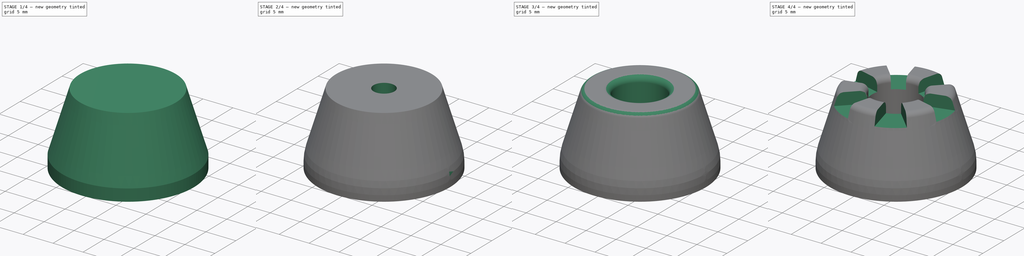
[diagram: build sequence overview — one tinted view per stage of 4, left to right]
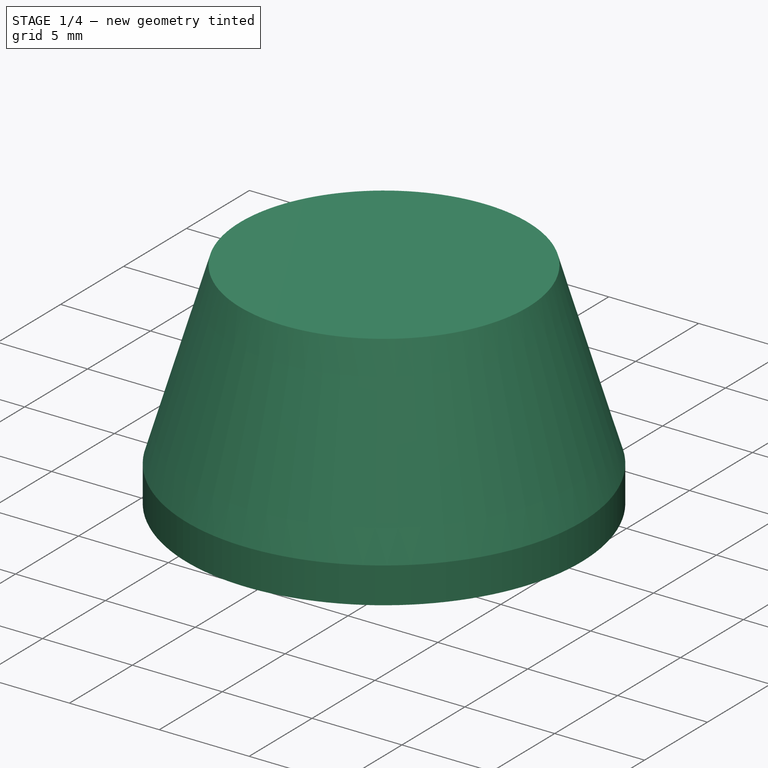
[diagram: stage 1 of 4 — iso view after this stage's code; geometry added in this stage tinted green]
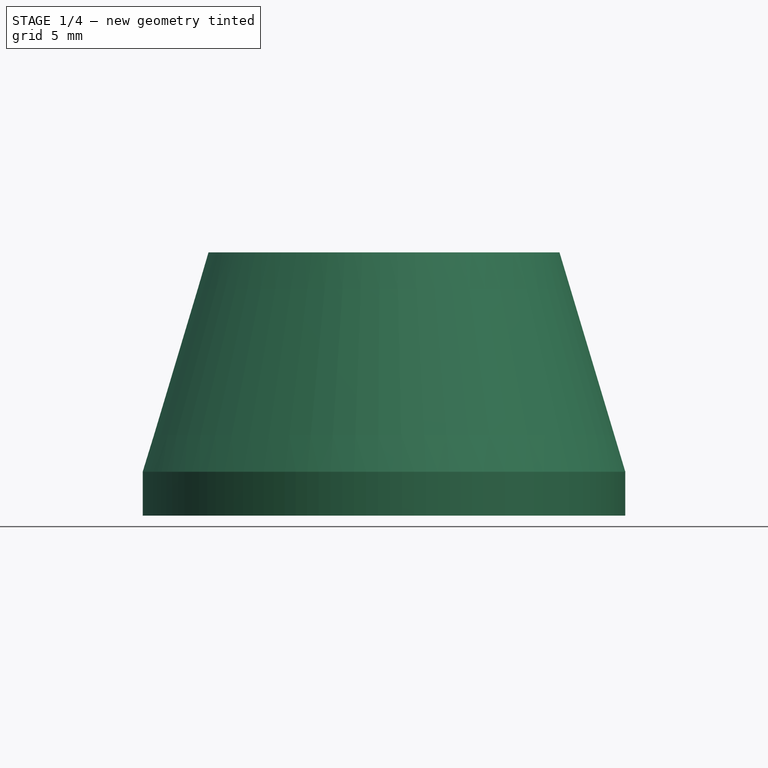
[diagram: stage 1 of 4 — front view after this stage's code; geometry added in this stage tinted green]
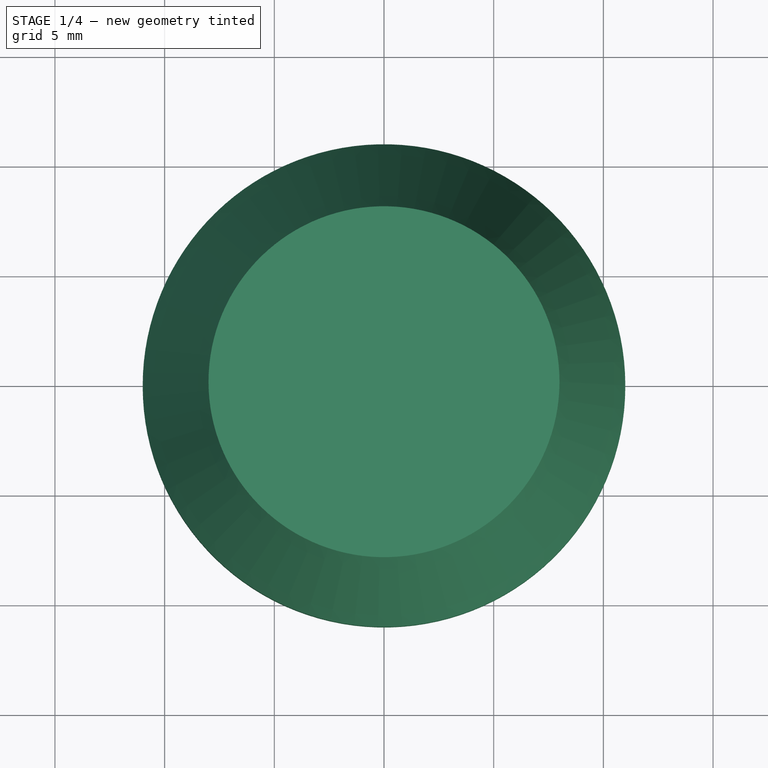
[diagram: stage 1 of 4 — top view after this stage's code; geometry added in this stage tinted green]
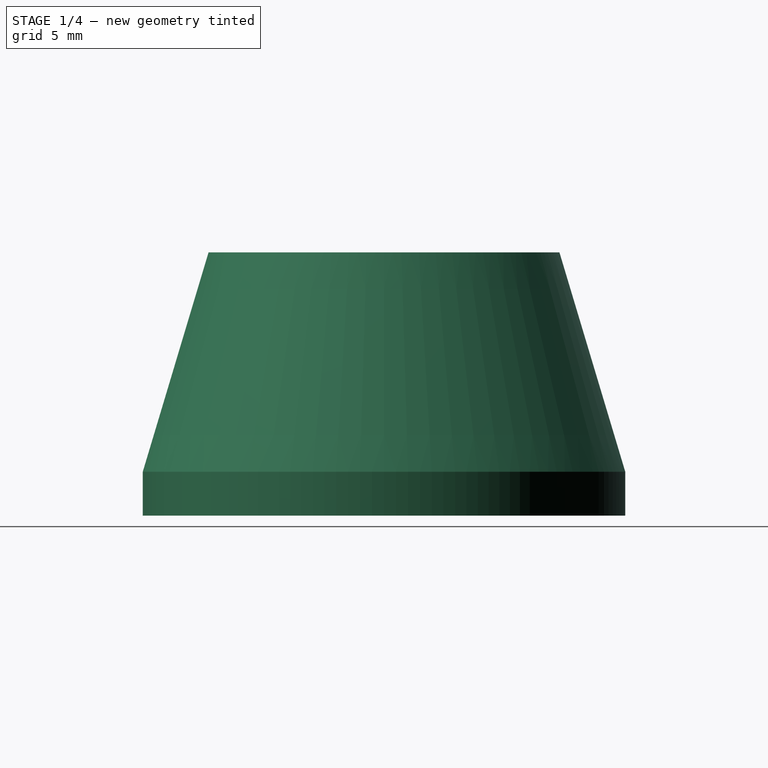
[diagram: stage 1 of 4 — right view after this stage's code; geometry added in this stage tinted green]
FCSTD DOCUMENT  (FreeCAD 0.19R22756 (Git))
Label: Rancilio-Silivia-foot
License: All rights reserved
LicenseURL: http://en.wikipedia.org/wiki/All_rights_reserved
objects: Sketcher::SketchObject×6, PartDesign::Fillet×3, PartDesign::Pocket×3, PartDesign::Pad×1, PartDesign::Plane×1, PartDesign::AdditiveLoft×1, PartDesign::PolarPattern×1, PartDesign::Body×1
note: 25 computed .brp shape members not serialized (recipe doc carries the construction recipe); baked Part::Feature solids carry a one-line shape summary decoded from their .brp

FEATURE [Sketcher::SketchObject] Sketch
  MapMode = 5
  Support = -> [XY_Plane]
  sketch-geometry (1):
    g0: Circle CenterX=0 CenterY=0 CenterZ=0 NormalX=0 NormalY=0 NormalZ=1 AngleXU=0 Radius=11
  constraints (2):
    c: Coincident(g0,g-1)
    c: Diameter(g0) = 22
FEATURE [PartDesign::Pad] Pad
  Direction = (1,1,1)
  Length = 2
  Length2 = 100
  Profile = -> Sketch
  Type = 0
FEATURE [Sketcher::SketchObject] Sketch001
  ExternalGeometry = -> [Pad]
  MapMode = 5
  Placement = pos=(0,0,2) rot=(0,0,1;0rad)
  Support = -> [Pad]
  sketch-geometry (1):
    g0: Circle CenterX=0 CenterY=0 CenterZ=0 NormalX=0 NormalY=0 NormalZ=1 AngleXU=0 Radius=11
  constraints (2):
    c: Coincident(g0,g-1)
    c: Equal(g-3,g0)
FEATURE [PartDesign::Plane] DatumPlane
  AttachmentOffset = pos=(0,0,10) rot=(0,0,1;0rad)
  Length = 60
  MapMode = 2
  Placement = pos=(0,0,12) rot=(0,0,1;0rad)
  ResizeMode = 0
  Support = -> [Sketch001]
  Width = 60
FEATURE [Sketcher::SketchObject] Sketch002
  MapMode = 5
  Placement = pos=(0,0,12) rot=(0,0,1;0rad)
  Support = -> [DatumPlane]
  sketch-geometry (1):
    g0: Circle CenterX=0 CenterY=0 CenterZ=0 NormalX=0 NormalY=0 NormalZ=1 AngleXU=0 Radius=8
  constraints (2):
    c: Coincident(g0,g-1)
    c: Diameter(g0) = 16
FEATURE [PartDesign::AdditiveLoft] AdditiveLoft
  BaseFeature = -> Pad
  Closed = false
  Profile = -> Sketch001
  Ruled = false
  Sections = -> [Sketch002]
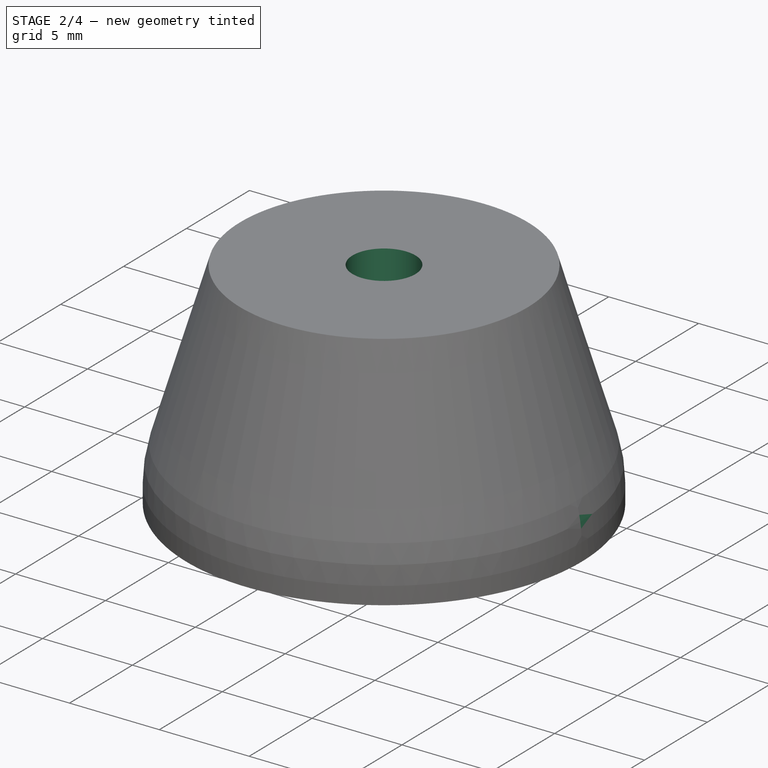
[diagram: stage 2 of 4 — iso view after this stage's code; geometry added in this stage tinted green]
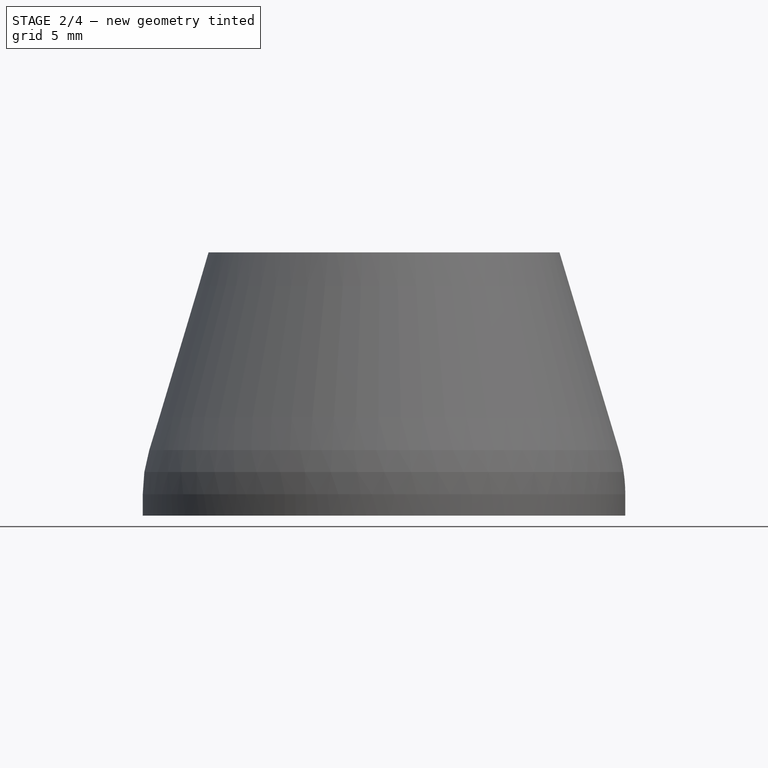
[diagram: stage 2 of 4 — front view after this stage's code; geometry added in this stage tinted green]
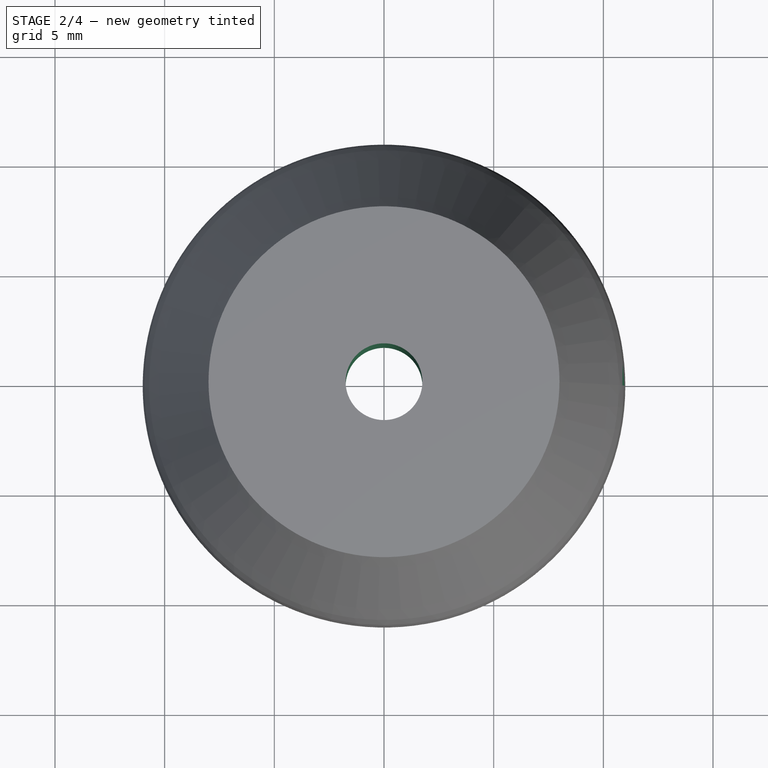
[diagram: stage 2 of 4 — top view after this stage's code; geometry added in this stage tinted green]
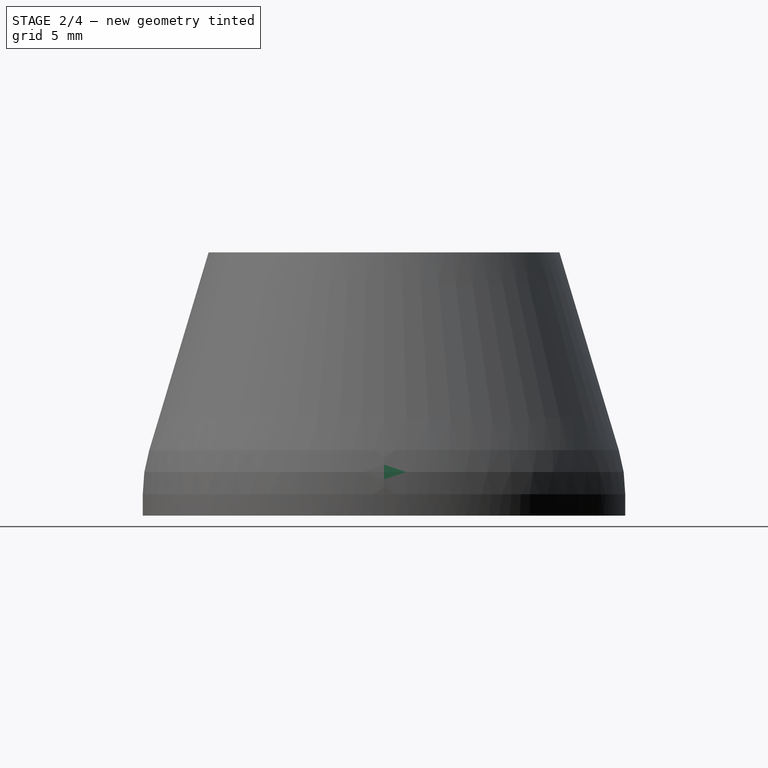
[diagram: stage 2 of 4 — right view after this stage's code; geometry added in this stage tinted green]
FEATURE [PartDesign::Fillet] Fillet
  Base = -> AdditiveLoft [Edge3]
  BaseFeature = -> AdditiveLoft
  Radius = 7
  SupportTransform = false
FEATURE [Sketcher::SketchObject] Sketch003
  MapMode = 5
  Placement = pos=(0,0,12) rot=(0,0,1;0rad)
  Support = -> [Fillet]
  sketch-geometry (1):
    g0: Circle CenterX=0 CenterY=0 CenterZ=0 NormalX=0 NormalY=0 NormalZ=1 AngleXU=0 Radius=1.75
  constraints (2):
    c: Coincident(g0,g-1)
    c: Diameter(g0) = 3.5
FEATURE [PartDesign::Pocket] Pocket
  BaseFeature = -> Fillet
  Length = 5
  Length2 = 100
  Profile = -> Sketch003
  Type = 1
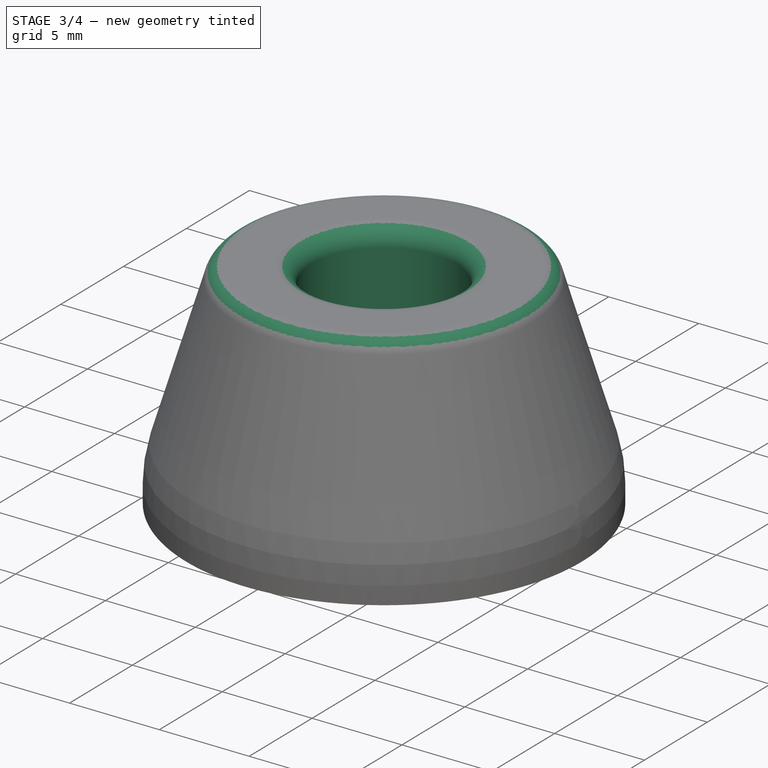
[diagram: stage 3 of 4 — iso view after this stage's code; geometry added in this stage tinted green]
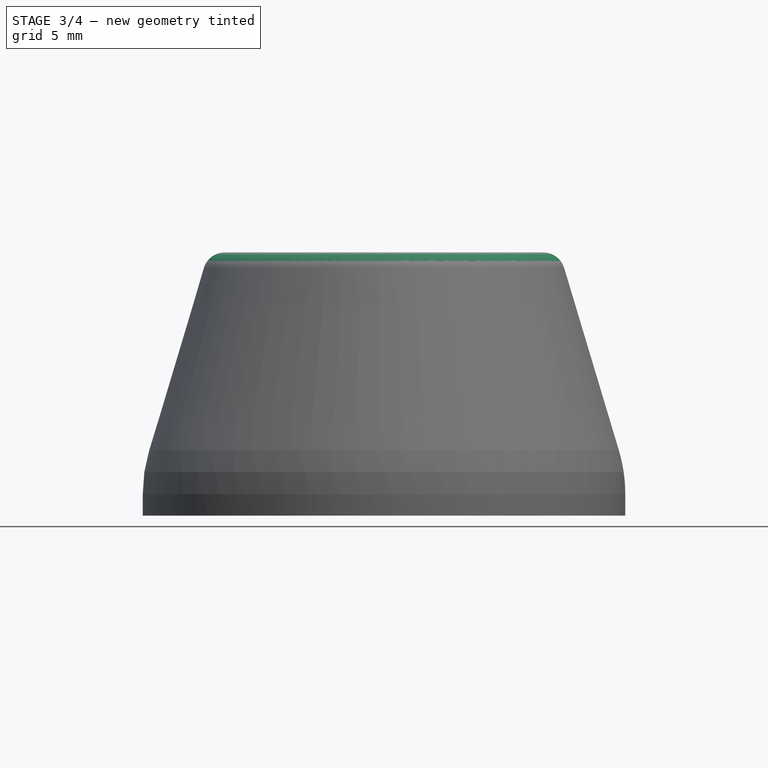
[diagram: stage 3 of 4 — front view after this stage's code; geometry added in this stage tinted green]
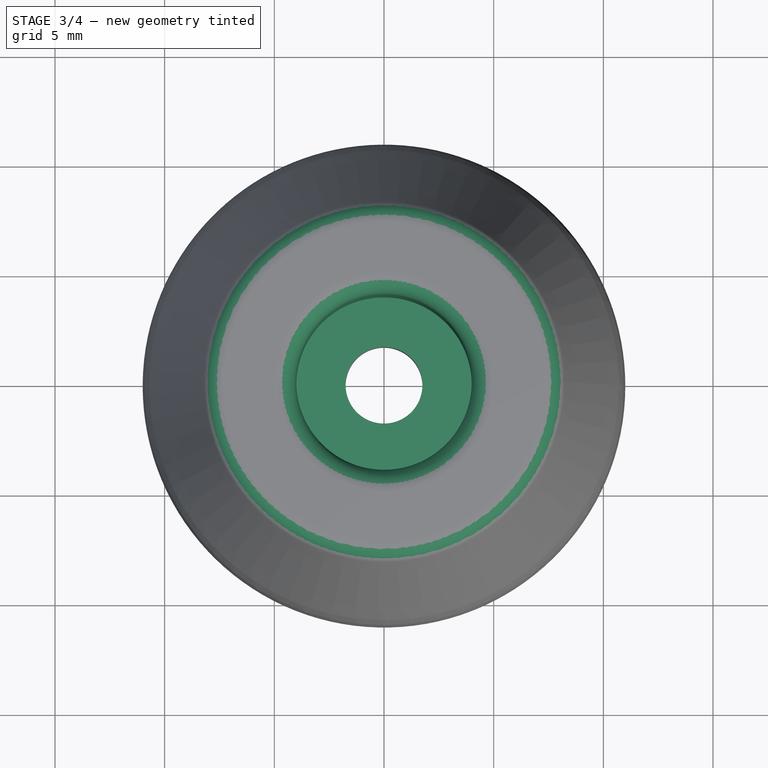
[diagram: stage 3 of 4 — top view after this stage's code; geometry added in this stage tinted green]
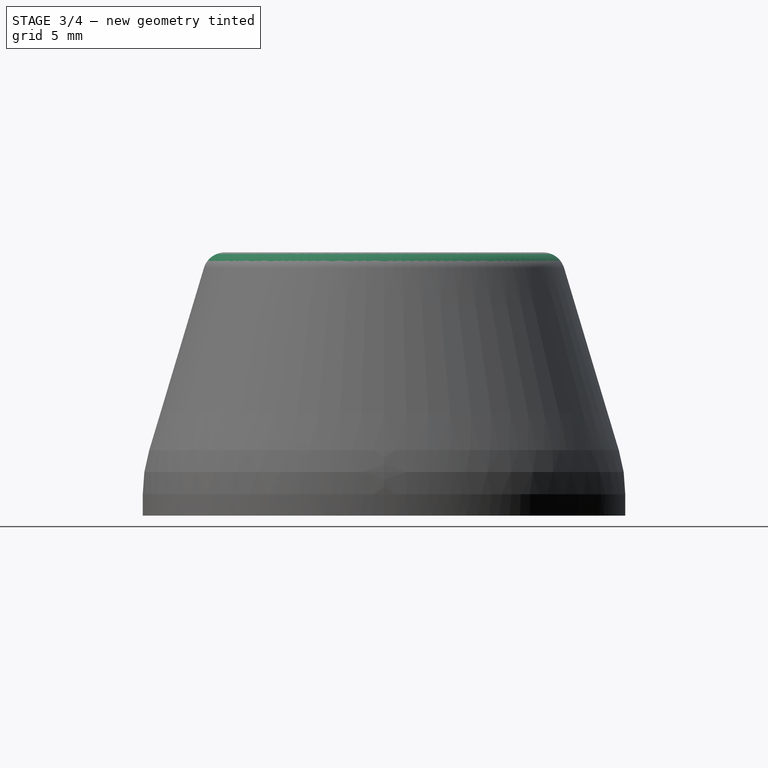
[diagram: stage 3 of 4 — right view after this stage's code; geometry added in this stage tinted green]
FEATURE [Sketcher::SketchObject] Sketch004
  MapMode = 5
  Placement = pos=(0,0,12) rot=(0,0,1;0rad)
  Support = -> [Pocket]
  sketch-geometry (1):
    g0: Circle CenterX=0 CenterY=0 CenterZ=0 NormalX=0 NormalY=0 NormalZ=1 AngleXU=0 Radius=4
  constraints (2):
    c: Coincident(g0,g-1)
    c: Diameter(g0) = 8
FEATURE [PartDesign::Pocket] Pocket001
  BaseFeature = -> Pocket
  Length = 0
  Length2 = 100
  Offset = -3
  Profile = -> Sketch004
  Type = 3
  UpToFace = -> Pocket [Face3]
FEATURE [PartDesign::Fillet] Fillet001
  Base = -> Pocket001 [Edge8]
  BaseFeature = -> Pocket001
  Radius = 1
  SupportTransform = false
FEATURE [PartDesign::Fillet] Fillet002
  Base = -> Fillet001 [Edge8]
  BaseFeature = -> Fillet001
  Radius = 1
  SupportTransform = false
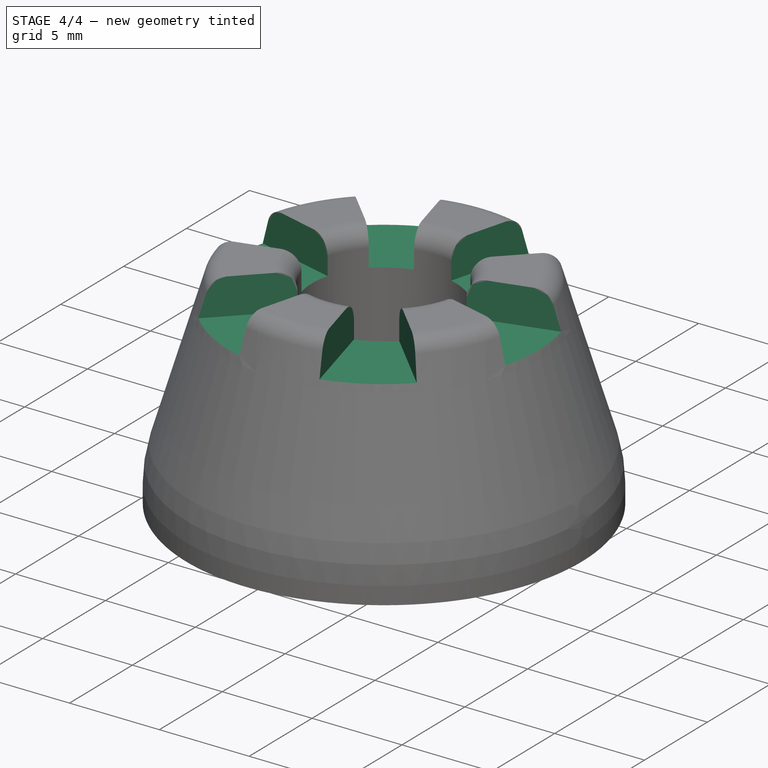
[diagram: stage 4 of 4 — iso view after this stage's code; geometry added in this stage tinted green]
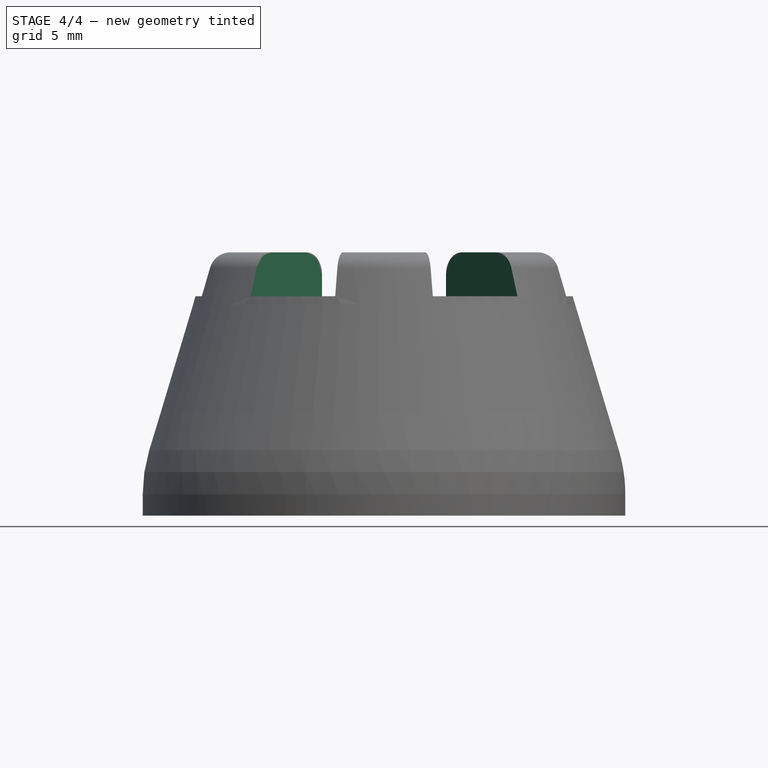
[diagram: stage 4 of 4 — front view after this stage's code; geometry added in this stage tinted green]
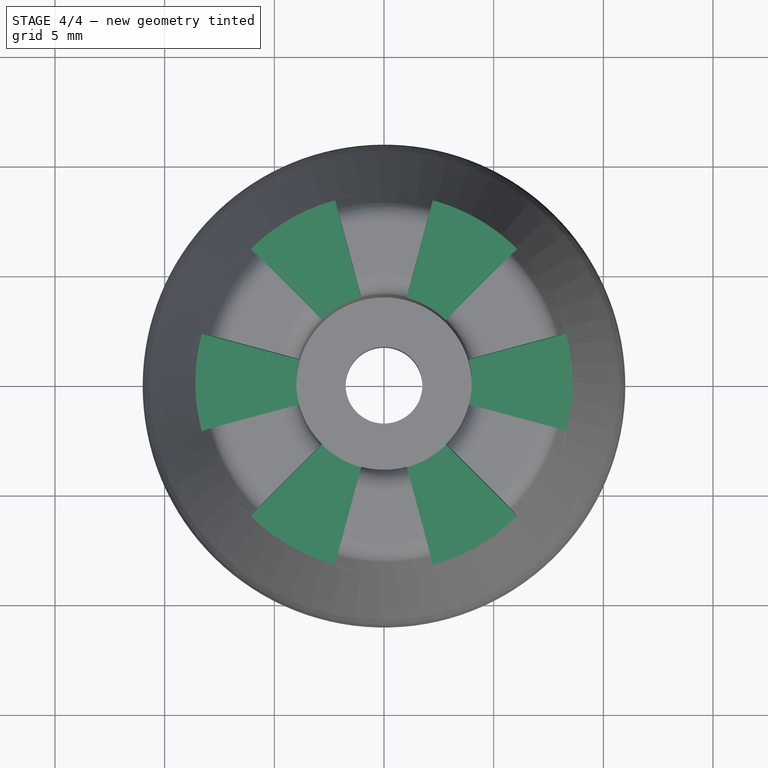
[diagram: stage 4 of 4 — top view after this stage's code; geometry added in this stage tinted green]
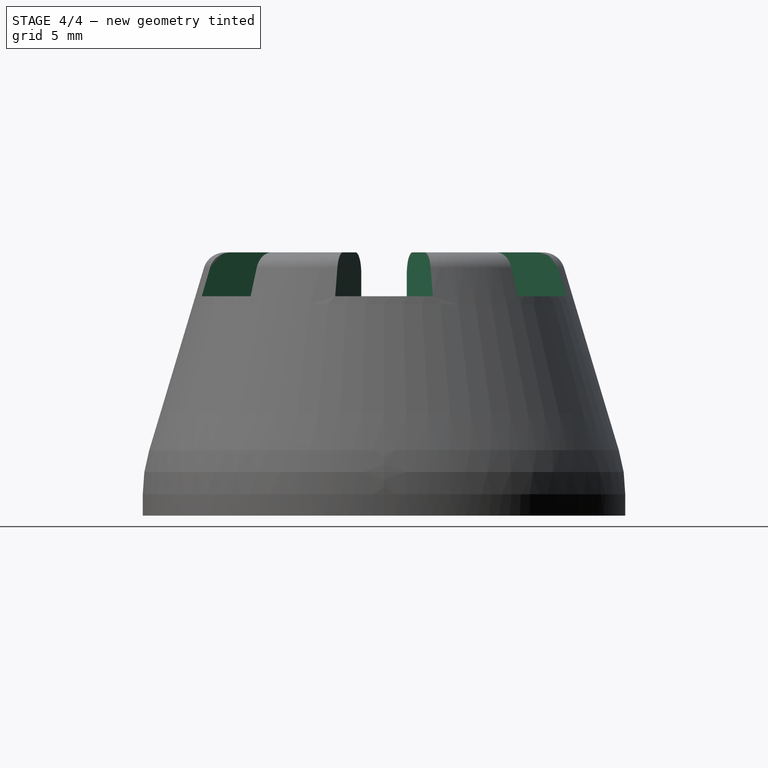
[diagram: stage 4 of 4 — right view after this stage's code; geometry added in this stage tinted green]
FEATURE [Sketcher::SketchObject] Sketch005
  ExternalGeometry = -> [Fillet002]
  MapMode = 5
  Placement = pos=(0,0,12) rot=(0,0,1;0rad)
  Support = -> [Fillet002]
  expr: Constraints[2] = 180° - Constraints[1] / 2
  sketch-geometry (9):
    g0: LineSegment [constr] StartX=-7.00873 StartY=1.87798 StartZ=0 EndX=0 EndY=0 EndZ=0
    g1: LineSegment [constr] StartX=-7.00873 StartY=-1.87798 StartZ=0 EndX=0 EndY=0 EndZ=0
    g2: ArcOfCircle [constr] CenterX=0 CenterY=0 CenterZ=0 NormalX=0 NormalY=0 NormalZ=1 AngleXU=0 Radius=5 StartAngle=2.87979 EndAngle=3.40339
    g3: LineSegment StartX=-9.65926 StartY=2.58819 StartZ=0 EndX=-4.82963 EndY=1.2941 EndZ=0
    g4: LineSegment StartX=-9.65926 StartY=-2.58819 StartZ=0 EndX=-4.82963 EndY=-1.2941 EndZ=0
    g5: LineSegment StartX=-4.82963 StartY=1.2941 StartZ=0 EndX=-1.93185 EndY=0.517638 EndZ=0
    g6: LineSegment StartX=-4.82963 StartY=-1.2941 StartZ=0 EndX=-1.93185 EndY=-0.517638 EndZ=0
    g7: ArcOfCircle CenterX=0 CenterY=0 CenterZ=0 NormalX=0 NormalY=0 NormalZ=1 AngleXU=0 Radius=2 StartAngle=2.87979 EndAngle=3.40339
    g8: ArcOfCircle CenterX=0 CenterY=0 CenterZ=0 NormalX=0 NormalY=0 NormalZ=1 AngleXU=0 Radius=10 StartAngle=2.87979 EndAngle=3.40339
  constraints (25):
    c: PointOnObject(g1,g-3)
    c: Angle(g0,g1) = 0.523599
    c: Angle(g1,g-1) = 2.87979
    c: PointOnObject(g2,g-4)
    c: PointOnObject(g2,g0)
    c: Coincident(g3,g2)
    c: Coincident(g4,g2)
    c: Coincident(g5,g3)
    c: PointOnObject(g5,g0)
    c: Coincident(g6,g4)
    c: PointOnObject(g6,g1)
    c: Coincident(g0,g2)
    c: Coincident(g0,g-1)
    c: Coincident(g1,g-1)
    c: Distance(g5) = 3
    c: Coincident(g7,g-1)
    c: Coincident(g7,g5)
    c: Coincident(g7,g6)
    c: Tangent(g1,g4) = -1.5708
    c: PointOnObject(g0,g3)
    c: PointOnObject(g0,g-3)
    c: Distance(g3) = 5
    c: Coincident(g8,g7)
    c: Coincident(g8,g3)
    c: Coincident(g8,g4)
FEATURE [PartDesign::Pocket] Pocket002
  BaseFeature = -> Fillet002
  Length = 2
  Length2 = 100
  Profile = -> Sketch005
  Type = 0
FEATURE [PartDesign::PolarPattern] PolarPattern
  Angle = 360
  Axis = -> Sketch005 [N_Axis]
  BaseFeature = -> Pocket002
  Occurrences = 6
  Originals = -> [Pocket002]
FEATURE [PartDesign::Body] Body
  Group = -> [Sketch,Pad,Sketch001,DatumPlane,Sketch002,AdditiveLoft,Fillet,Sketch003,Pocket,Sketch004,Pocket001,Fillet001,Fillet002,Sketch005,Pocket002,PolarPattern]
  Origin = -> Origin
  Tip = -> PolarPattern
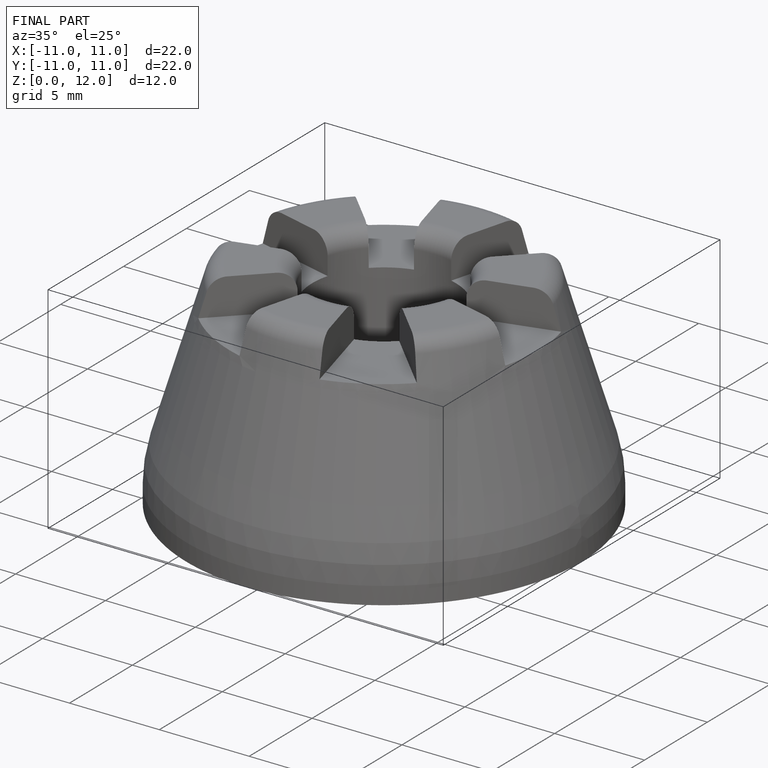
[diagram: finished part — iso view with bounding-box wireframe]
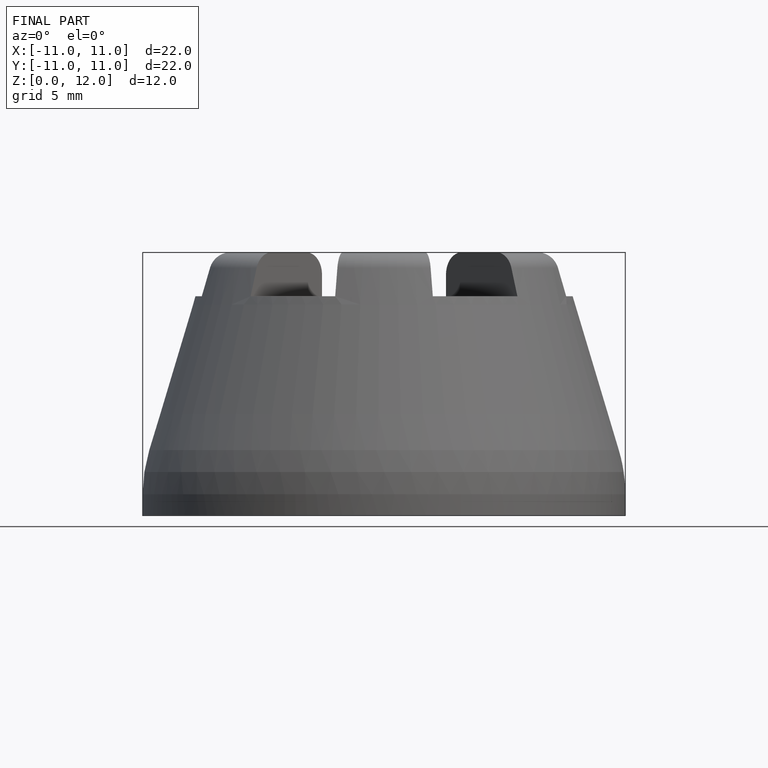
[diagram: finished part — front view with bounding-box wireframe]
